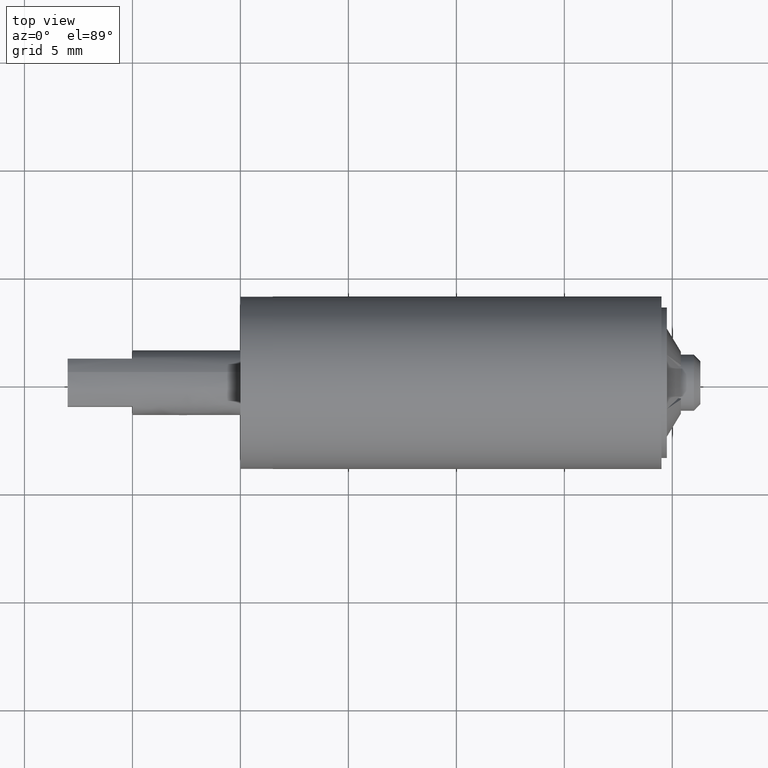
[diagram: clean part render]
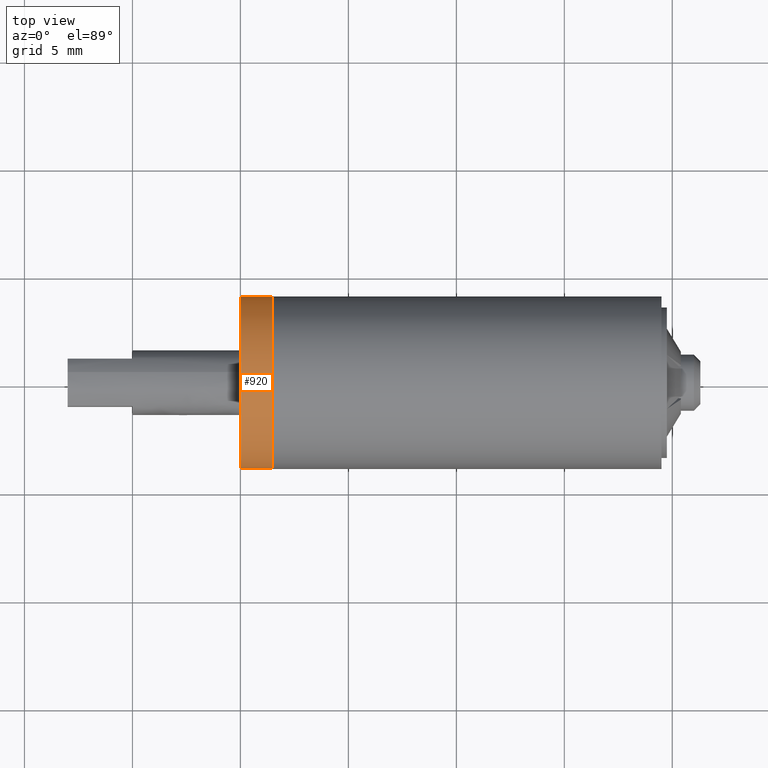
[diagram: same view with one face highlighted and labeled with its STEP entity id]
A machine part, top view. The second image highlights one B-rep face of the part: STEP entity #920.
In plain terms, the highlighted face is a freeform B-spline surface patch.
Its self-contained STEP definition (entity closure, byte-faithful):
#818=CARTESIAN_POINT('',(-4.962500000000001,3.972038105454666,0.472136938627034));
#819=CARTESIAN_POINT('',(-4.962500000000000,3.985550461794422,0.358458914551911));
#820=CARTESIAN_POINT('',(-4.962500000000000,3.992539193687467,0.244194158139428));
#821=CARTESIAN_POINT('',(-4.962500000000000,4.236733351826894,-3.748345035548039));
#822=CARTESIAN_POINT('',(-4.962500000000000,0.244194158139428,-3.992539193687467));
#823=CARTESIAN_POINT('',(-4.962500000000000,-3.748345035548039,-4.236733351826894));
#824=CARTESIAN_POINT('',(-4.962500000000000,-3.992539193687467,-0.244194158139428));
#825=CARTESIAN_POINT('',(-6.538437500000001,3.972038105454666,0.472136938627034));
#826=CARTESIAN_POINT('',(-6.538437500000001,3.985550461794422,0.358458914551911));
#827=CARTESIAN_POINT('',(-6.538437500000001,3.992539193687467,0.244194158139428));
#828=CARTESIAN_POINT('',(-6.538437500000001,4.236733351826894,-3.748345035548039));
#829=CARTESIAN_POINT('',(-6.538437500000001,0.244194158139428,-3.992539193687467));
#830=CARTESIAN_POINT('',(-6.538437500000001,-3.748345035548039,-4.236733351826894));
#831=CARTESIAN_POINT('',(-6.538437500000001,-3.992539193687467,-0.244194158139428));
#839=(BOUNDED_SURFACE()B_SPLINE_SURFACE(2,1,((#818,#825),(#819,#826),(#820,#827),(#821,#828),(#822,#829),(#823,#830),(#824,#831)),.UNSPECIFIED.,.F.,.F.,.U.)B_SPLINE_SURFACE_WITH_KNOTS((3,2,2,3),(2,2),(0.0,0.265096679918781,6.892513677888299,13.519930675857820),(0.0,1.0),.UNSPECIFIED.)GEOMETRIC_REPRESENTATION_ITEM()RATIONAL_B_SPLINE_SURFACE(((0.977505800795127,0.977505800795127),(0.988284271247462,0.988284271247462),(1.0,1.0),(0.707106781186548,0.707106781186548),(1.0,1.0),(0.707106781186548,0.707106781186548),(1.0,1.0)))REPRESENTATION_ITEM('')SURFACE());
#840=CARTESIAN_POINT('',(-5.000000000000144,3.972038683408651,0.472132076310524));
#841=VERTEX_POINT('',#840);
#842=CARTESIAN_POINT('',(-5.0,0.0,-4.0));
#843=VERTEX_POINT('',#842);
#844=CARTESIAN_POINT('',(-5.000000000000145,3.972038683408651,0.472132076310524));
#845=CARTESIAN_POINT('',(-5.0,4.000000000000001,0.236894021747937));
#846=CARTESIAN_POINT('',(-5.0,4.0,0.0));
#847=CARTESIAN_POINT('',(-5.000000000000001,4.000000000000000,-4.000000000000000));
#848=CARTESIAN_POINT('',(-5.0,0.0,-4.0));
#856=(BOUNDED_CURVE()B_SPLINE_CURVE(2,(#844,#845,#846,#847,#848),.UNSPECIFIED.,.F.,.U.)B_SPLINE_CURVE_WITH_KNOTS((3,2,3),(0.229562680398692,0.250000000000000,0.500000000000000),.UNSPECIFIED.)CURVE()GEOMETRIC_REPRESENTATION_ITEM()RATIONAL_B_SPLINE_CURVE((0.956027159687527,0.976056190712214,1.0,0.707106781186548,1.0))REPRESENTATION_ITEM(''));
#857=EDGE_CURVE('',#841,#843,#856,.T.);
#858=ORIENTED_EDGE('',*,*,#857,.T.);
#859=CARTESIAN_POINT('',(-5.0,-3.992539193686305,-0.244194158158439));
#860=VERTEX_POINT('',#859);
#861=CARTESIAN_POINT('',(-5.0,0.0,-4.0));
#862=CARTESIAN_POINT('',(-5.0,-3.762824267586854,-4.000000000000001));
#863=CARTESIAN_POINT('',(-5.0,-3.992539193686305,-0.244194158158439));
#871=(BOUNDED_CURVE()B_SPLINE_CURVE(2,(#861,#862,#863),.UNSPECIFIED.,.F.,.U.)B_SPLINE_CURVE_WITH_KNOTS((3,3),(0.500000000000000,0.739332962240324),.UNSPECIFIED.)CURVE()GEOMETRIC_REPRESENTATION_ITEM()RATIONAL_B_SPLINE_CURVE((1.0,0.719603993285092,0.976072041669678))REPRESENTATION_ITEM(''));
#872=EDGE_CURVE('',#843,#860,#871,.T.);
#873=ORIENTED_EDGE('',*,*,#872,.T.);
#874=CARTESIAN_POINT('',(-6.500000000000000,-3.992539193686305,-0.244194158158439));
#875=VERTEX_POINT('',#874);
#876=CARTESIAN_POINT('',(-5.0,-3.992539193686305,-0.244194158158439));
#877=CARTESIAN_POINT('',(-6.500000000000000,-3.992539193686305,-0.244194158158439));
#878=QUASI_UNIFORM_CURVE('',1,(#876,#877),.UNSPECIFIED.,.F.,.U.);
#879=EDGE_CURVE('',#860,#875,#878,.T.);
#880=ORIENTED_EDGE('',*,*,#879,.T.);
#881=CARTESIAN_POINT('',(-6.500000000000000,0.0,-4.0));
#882=VERTEX_POINT('',#881);
#883=CARTESIAN_POINT('',(-6.500000000000000,0.0,-4.0));
#884=CARTESIAN_POINT('',(-6.500000000000000,-3.762824267586854,-4.000000000000001));
#885=CARTESIAN_POINT('',(-6.500000000000001,-3.992539193686305,-0.244194158158439));
#893=(BOUNDED_CURVE()B_SPLINE_CURVE(2,(#883,#884,#885),.UNSPECIFIED.,.F.,.U.)B_SPLINE_CURVE_WITH_KNOTS((3,3),(0.500000000000000,0.739332962240324),.UNSPECIFIED.)CURVE()GEOMETRIC_REPRESENTATION_ITEM()RATIONAL_B_SPLINE_CURVE((1.0,0.719603993285092,0.976072041669678))REPRESENTATION_ITEM(''));
#894=EDGE_CURVE('',#882,#875,#893,.T.);
#895=ORIENTED_EDGE('',*,*,#894,.F.);
#896=CARTESIAN_POINT('',(-6.500000000000000,3.972038676453210,0.472132134827126));
#897=VERTEX_POINT('',#896);
#898=CARTESIAN_POINT('',(-6.500000000000000,3.972038676453210,0.472132134827126));
#899=CARTESIAN_POINT('',(-6.500000000000000,4.0,0.236894051315542));
#900=CARTESIAN_POINT('',(-6.500000000000000,4.0,0.0));
#901=CARTESIAN_POINT('',(-6.500000000000001,4.000000000000000,-4.000000000000000));
#902=CARTESIAN_POINT('',(-6.500000000000000,0.0,-4.0));
#910=(BOUNDED_CURVE()B_SPLINE_CURVE(2,(#898,#899,#900,#901,#902),.UNSPECIFIED.,.F.,.U.)B_SPLINE_CURVE_WITH_KNOTS((3,2,3),(0.229562677908913,0.250000000000000,0.500000000000000),.UNSPECIFIED.)CURVE()GEOMETRIC_REPRESENTATION_ITEM()RATIONAL_B_SPLINE_CURVE((0.956027154807448,0.976056187795257,1.0,0.707106781186548,1.0))REPRESENTATION_ITEM(''));
#911=EDGE_CURVE('',#897,#882,#910,.T.);
#912=ORIENTED_EDGE('',*,*,#911,.F.);
#913=CARTESIAN_POINT('',(-5.000000000000144,3.972038683408651,0.472132076310524));
#914=CARTESIAN_POINT('',(-6.500000000000000,3.972038676453210,0.472132134827126));
#915=QUASI_UNIFORM_CURVE('',1,(#913,#914),.UNSPECIFIED.,.F.,.U.);
#916=EDGE_CURVE('',#841,#897,#915,.T.);
#917=ORIENTED_EDGE('',*,*,#916,.F.);
#918=EDGE_LOOP('',(#858,#873,#880,#895,#912,#917));
#919=FACE_OUTER_BOUND('',#918,.T.);
#920=ADVANCED_FACE('',(#919),#839,.T.);